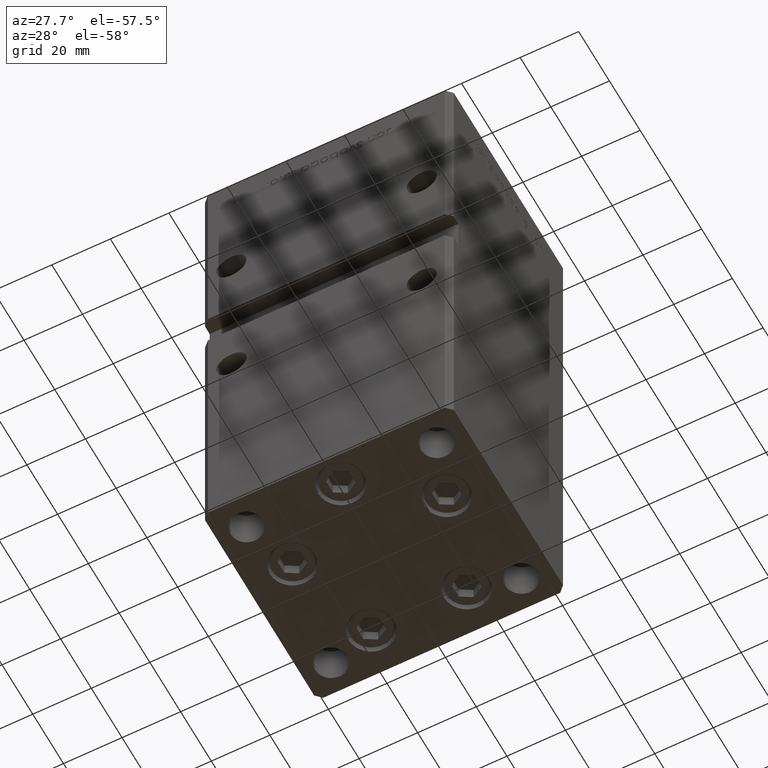
[diagram: clean part render]
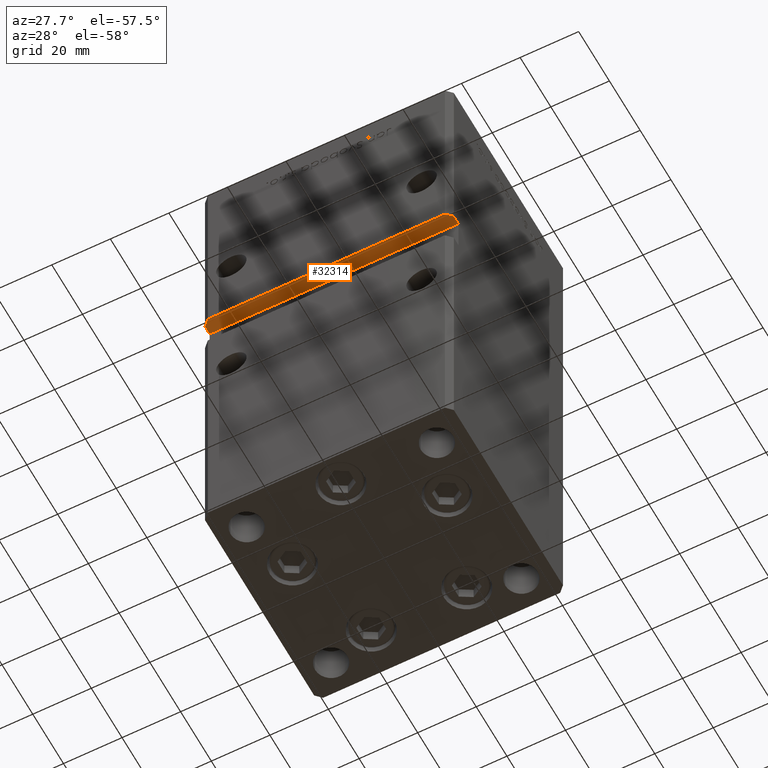
[diagram: same view with one face highlighted and labeled with its STEP entity id]
A machine part, auxiliary view. The second image highlights one B-rep face of the part: STEP entity #32314.
In plain terms, the highlighted planar face has unit normal (0, 0, 1).
Its self-contained STEP definition (entity closure, byte-faithful):
#111 = CARTESIAN_POINT ( 'NONE',  ( -42.49999999999998579, -32.50000000000000711, 94.00000000000000000 ) ) ;
#509 = CARTESIAN_POINT ( 'NONE',  ( 42.49999999999998579, -35.50000000000000711, 94.00000000000000000 ) ) ;
#3156 = CARTESIAN_POINT ( 'NONE',  ( -42.49999999999998579, -32.50000000000000711, 94.00000000000000000 ) ) ;
#3713 = VERTEX_POINT ( 'NONE', #13994 ) ;
#4195 = CARTESIAN_POINT ( 'NONE',  ( 42.49999999999998579, -32.50000000000000711, 94.00000000000000000 ) ) ;
#4410 = DIRECTION ( 'NONE',  ( 0.000000000000000000, 0.000000000000000000, 1.000000000000000000 ) ) ;
#4484 = VECTOR ( 'NONE', #43510, 1000.000000000000000 ) ;
#5146 = LINE ( 'NONE', #18338, #7973 ) ;
#7287 = VECTOR ( 'NONE', #44614, 1000.000000000000114 ) ;
#7973 = VECTOR ( 'NONE', #42787, 1000.000000000000000 ) ;
#8448 = FACE_OUTER_BOUND ( 'NONE', #18802, .T. ) ;
#8565 = LINE ( 'NONE', #509, #7287 ) ;
#9841 = CARTESIAN_POINT ( 'NONE',  ( 42.49999999999998579, -35.50000000000000711, 94.00000000000000000 ) ) ;
#9881 = ORIENTED_EDGE ( 'NONE', *, *, #24097, .T. ) ;
#10084 = CARTESIAN_POINT ( 'NONE',  ( -42.49999999999998579, -32.50000000000000711, 94.00000000000000000 ) ) ;
#13669 = ORIENTED_EDGE ( 'NONE', *, *, #32444, .T. ) ;
#13725 = LINE ( 'NONE', #50004, #20749 ) ;
#13994 = CARTESIAN_POINT ( 'NONE',  ( -42.49999999999998579, -32.50000000000000711, 94.00000000000000000 ) ) ;
#16796 = PLANE ( 'NONE',  #37274 ) ;
#18338 = CARTESIAN_POINT ( 'NONE',  ( 42.49999999999998579, -32.50000000000000711, 94.00000000000000000 ) ) ;
#18802 = EDGE_LOOP ( 'NONE', ( #39412, #24124, #47001, #13669, #9881, #26303 ) ) ;
#19107 = CARTESIAN_POINT ( 'NONE',  ( 40.49999999999997868, -37.50000000000000711, 94.00000000000000000 ) ) ;
#19733 = CARTESIAN_POINT ( 'NONE',  ( -40.49999999999998579, -37.50000000000000711, 94.00000000000000000 ) ) ;
#19806 = VERTEX_POINT ( 'NONE', #19107 ) ;
#20702 = VECTOR ( 'NONE', #51610, 1000.000000000000114 ) ;
#20749 = VECTOR ( 'NONE', #30127, 1000.000000000000000 ) ;
#20829 = DIRECTION ( 'NONE',  ( 1.000000000000000000, 0.000000000000000000, -0.000000000000000000 ) ) ;
#23552 = EDGE_CURVE ( 'NONE', #29081, #3713, #47439, .T. ) ;
#24097 = EDGE_CURVE ( 'NONE', #19806, #25449, #13725, .T. ) ;
#24124 = ORIENTED_EDGE ( 'NONE', *, *, #23552, .F. ) ;
#25449 = VERTEX_POINT ( 'NONE', #19733 ) ;
#26303 = ORIENTED_EDGE ( 'NONE', *, *, #37617, .F. ) ;
#29081 = VERTEX_POINT ( 'NONE', #4195 ) ;
#30127 = DIRECTION ( 'NONE',  ( -1.000000000000000000, -0.000000000000000000, -0.000000000000000000 ) ) ;
#30679 = CARTESIAN_POINT ( 'NONE',  ( -42.49999999999998579, -35.50000000000000711, 94.00000000000000000 ) ) ;
#31075 = VECTOR ( 'NONE', #50935, 1000.000000000000000 ) ;
#31931 = LINE ( 'NONE', #3156, #4484 ) ;
#32314 = ADVANCED_FACE ( 'NONE', ( #8448 ), #16796, .F. ) ;
#32444 = EDGE_CURVE ( 'NONE', #50901, #19806, #8565, .T. ) ;
#37274 = AXIS2_PLACEMENT_3D ( 'NONE', #111, #4410, #20829 ) ;
#37617 = EDGE_CURVE ( 'NONE', #39977, #25449, #40057, .T. ) ;
#39412 = ORIENTED_EDGE ( 'NONE', *, *, #41423, .F. ) ;
#39977 = VERTEX_POINT ( 'NONE', #40934 ) ;
#40057 = LINE ( 'NONE', #30679, #20702 ) ;
#40934 = CARTESIAN_POINT ( 'NONE',  ( -42.49999999999998579, -35.50000000000001421, 94.00000000000000000 ) ) ;
#41423 = EDGE_CURVE ( 'NONE', #3713, #39977, #31931, .T. ) ;
#42787 = DIRECTION ( 'NONE',  ( -0.000000000000000000, -1.000000000000000000, -0.000000000000000000 ) ) ;
#42884 = EDGE_CURVE ( 'NONE', #29081, #50901, #5146, .T. ) ;
#43510 = DIRECTION ( 'NONE',  ( -0.000000000000000000, -1.000000000000000000, -0.000000000000000000 ) ) ;
#44614 = DIRECTION ( 'NONE',  ( -0.7071067811865474617, -0.7071067811865474617, 0.000000000000000000 ) ) ;
#47001 = ORIENTED_EDGE ( 'NONE', *, *, #42884, .T. ) ;
#47439 = LINE ( 'NONE', #10084, #31075 ) ;
#50004 = CARTESIAN_POINT ( 'NONE',  ( -42.49999999999998579, -37.50000000000000711, 94.00000000000000000 ) ) ;
#50901 = VERTEX_POINT ( 'NONE', #9841 ) ;
#50935 = DIRECTION ( 'NONE',  ( -1.000000000000000000, -0.000000000000000000, -0.000000000000000000 ) ) ;
#51610 = DIRECTION ( 'NONE',  ( 0.7071067811865474617, -0.7071067811865474617, 0.000000000000000000 ) ) ;